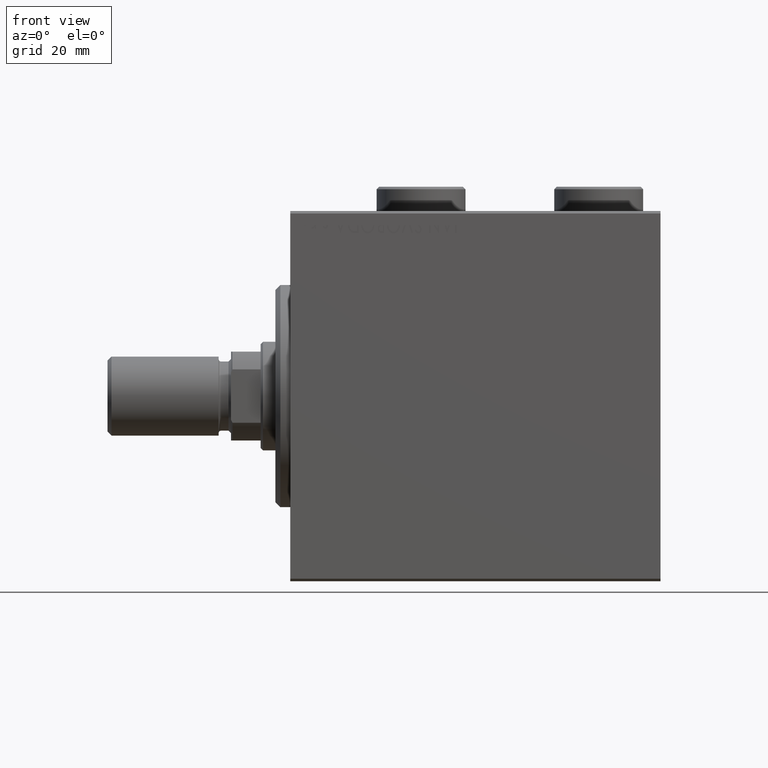
[diagram: clean part render]
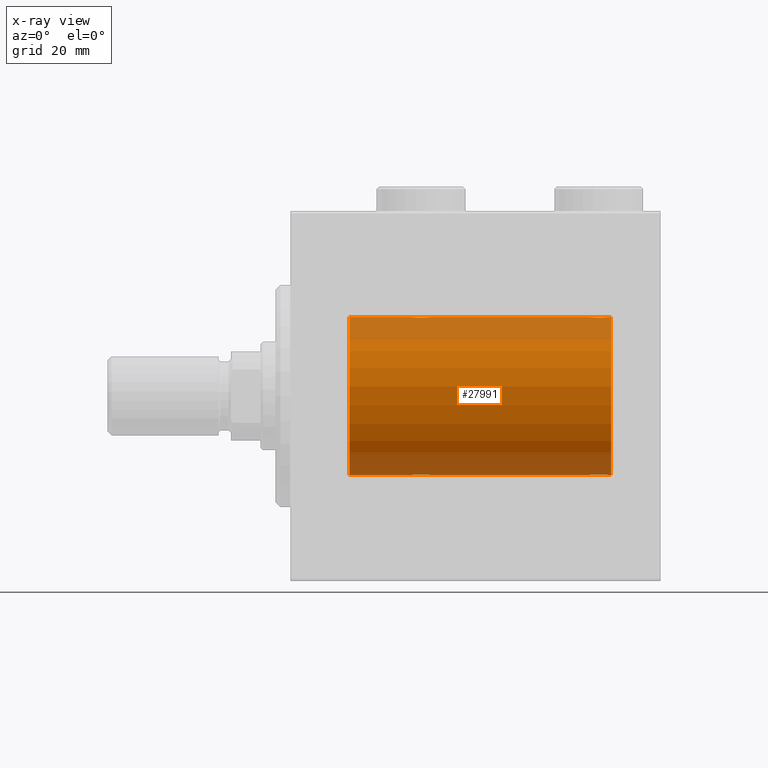
[diagram: x-ray — body ghosted, one internal face saturated and labeled with its STEP entity id]
A machine part, front view, then the same camera in x-ray: the body is ghosted and one INTERNAL B-rep face — a face not visible from any outside direction — is saturated and labeled: STEP entity #27991.
In plain terms, the highlighted cylindrical surface (partial cylindrical patch) has radius 16 mm, axis along (-1, -0, -0).
Its self-contained STEP definition (entity closure, byte-faithful):
#27 = CARTESIAN_POINT ( 'NONE',  ( 60.49999999999999289, -9.573340169032840992E-15, -16.00000000000000000 ) ) ;
#34 = CARTESIAN_POINT ( 'NONE',  ( 28.49999999999999289, -0.2645044045393371013, 16.00000000000000000 ) ) ;
#90 = CARTESIAN_POINT ( 'NONE',  ( 24.55325995304361086, -0.5272875822566830406, -15.99312147175148091 ) ) ;
#263 = CARTESIAN_POINT ( 'NONE',  ( 64.50000000000000000, -0.2611263091397180713, -16.00000000000000355 ) ) ;
#459 = CARTESIAN_POINT ( 'NONE',  ( 28.49999999999999645, 1.959434851238818770E-15, -16.00000000000000000 ) ) ;
#555 = CARTESIAN_POINT ( 'NONE',  ( 28.44751141031269626, -0.5244724041436300555, -15.99321727742820975 ) ) ;
#729 = CARTESIAN_POINT ( 'NONE',  ( 28.24678128854693426, -1.008257970366811751, 15.97001510549667103 ) ) ;
#1309 = AXIS2_PLACEMENT_3D ( 'NONE', #37104, #40366, #29671 ) ;
#1744 = VERTEX_POINT ( 'NONE', #23324 ) ;
#1869 = CARTESIAN_POINT ( 'NONE',  ( 65.00000000000000000, 1.959434878635765131E-15, -16.00000000000000000 ) ) ;
#2026 = CARTESIAN_POINT ( 'NONE',  ( 62.23629537121826871, -1.986819684797415331, 15.87618369521984896 ) ) ;
#2194 = CARTESIAN_POINT ( 'NONE',  ( 63.14636362870457020, -1.897207606501650989, -15.88720136683947182 ) ) ;
#2218 = DIRECTION ( 'NONE',  ( -1.000000000000000000, -0.000000000000000000, -0.000000000000000000 ) ) ;
#2251 = CARTESIAN_POINT ( 'NONE',  ( 61.17695155286794062, -1.505501573616968791, 15.92928245046055302 ) ) ;
#2482 = CARTESIAN_POINT ( 'NONE',  ( 61.98062885452072379, -1.935780515549986980, 15.88248768234623576 ) ) ;
#2659 = CARTESIAN_POINT ( 'NONE',  ( 60.75321871145306574, -1.008257970366820189, -15.97001510549667813 ) ) ;
#2735 = CARTESIAN_POINT ( 'NONE',  ( 64.50000000000000000, 1.959434851248285101E-15, -16.00000000000000000 ) ) ;
#2752 = EDGE_CURVE ( 'NONE', #5545, #11231, #35636, .T. ) ;
#3399 = VECTOR ( 'NONE', #26370, 1000.000000000000000 ) ;
#3520 = CARTESIAN_POINT ( 'NONE',  ( 63.01937114547926910, -1.935780515549996306, -15.88248768234623221 ) ) ;
#3754 = CARTESIAN_POINT ( 'NONE',  ( 60.90236864042802267, -1.231048876942808956, -15.95364199493483426 ) ) ;
#3851 = CARTESIAN_POINT ( 'NONE',  ( 65.00000000000000000, 0.000000000000000000, 16.00000000000000000 ) ) ;
#4282 = CARTESIAN_POINT ( 'NONE',  ( 25.61407850031505262, -1.797863738508699516, -15.89874935709250892 ) ) ;
#4485 = EDGE_CURVE ( 'NONE', #26222, #11111, #28794, .T. ) ;
#4520 = ORIENTED_EDGE ( 'NONE', *, *, #26149, .T. ) ;
#4683 = VECTOR ( 'NONE', #2218, 1000.000000000000000 ) ;
#4752 = ORIENTED_EDGE ( 'NONE', *, *, #13026, .F. ) ;
#5287 = CARTESIAN_POINT ( 'NONE',  ( 62.76082820349364511, -1.987201773464424504, 15.87613558886576115 ) ) ;
#5545 = VERTEX_POINT ( 'NONE', #2735 ) ;
#5689 = CARTESIAN_POINT ( 'NONE',  ( 63.82304844713207359, -1.505501573616973898, -15.92928245046055302 ) ) ;
#5959 = CARTESIAN_POINT ( 'NONE',  ( 60.75183372993787145, -1.005876079953899493, 15.97016854943969832 ) ) ;
#6137 = CARTESIAN_POINT ( 'NONE',  ( 62.36919591423421849, -2.000094120337583714, -15.87449600834270669 ) ) ;
#6446 = CYLINDRICAL_SURFACE ( 'NONE', #38851, 16.00000000000000000 ) ;
#6503 = CIRCLE ( 'NONE', #1309, 16.00000000000000000 ) ;
#7010 = CARTESIAN_POINT ( 'NONE',  ( 28.09763135957198799, -1.231048876942802961, 15.95364199493483781 ) ) ;
#7067 = CARTESIAN_POINT ( 'NONE',  ( 26.36919591423421494, -2.000094120337574388, -15.87449600834270669 ) ) ;
#7448 = CARTESIAN_POINT ( 'NONE',  ( 65.00000000000000000, 0.000000000000000000, 0.000000000000000000 ) ) ;
#7997 = CARTESIAN_POINT ( 'NONE',  ( 24.50000000000000000, -2.739635037742051899E-23, 16.00000000000000000 ) ) ;
#8671 = LINE ( 'NONE', #44274, #3399 ) ;
#9457 = CARTESIAN_POINT ( 'NONE',  ( 63.14376670717340545, -1.898087287925291466, 15.88709570026284190 ) ) ;
#9623 = CARTESIAN_POINT ( 'NONE',  ( 62.76370462878178103, -1.986819684797425767, -15.87618369521983475 ) ) ;
#10315 = CARTESIAN_POINT ( 'NONE',  ( 24.50000000000001066, -0.2645044045393414867, -16.00000000000000711 ) ) ;
#10489 = CARTESIAN_POINT ( 'NONE',  ( 27.38592149968496514, -1.797863738508701736, 15.89874935709250892 ) ) ;
#10618 = CARTESIAN_POINT ( 'NONE',  ( 60.49999999999999289, -9.573340169032840992E-15, -16.00000000000000000 ) ) ;
#11003 = CARTESIAN_POINT ( 'NONE',  ( 27.50320784791318118, -1.735114343256362712, -15.90580722143558212 ) ) ;
#11111 = VERTEX_POINT ( 'NONE', #20634 ) ;
#11178 = CARTESIAN_POINT ( 'NONE',  ( 24.50000000000000000, -2.739635037742051899E-23, 16.00000000000000000 ) ) ;
#11231 = VERTEX_POINT ( 'NONE', #10618 ) ;
#11237 = CARTESIAN_POINT ( 'NONE',  ( 28.50000000000000000, -0.2611263091397177383, -16.00000000000000000 ) ) ;
#11417 = CARTESIAN_POINT ( 'NONE',  ( 24.50000000000000355, -0.2611263091397209579, 16.00000000000000000 ) ) ;
#11849 = VERTEX_POINT ( 'NONE', #459 ) ;
#12878 = CARTESIAN_POINT ( 'NONE',  ( 61.17895665196596156, -1.507256214862792820, -15.92911555180481820 ) ) ;
#13026 = EDGE_CURVE ( 'NONE', #27104, #28616, #44029, .T. ) ;
#13153 = CARTESIAN_POINT ( 'NONE',  ( 60.90061418674617499, -1.228793614424115166, 15.95381972293796835 ) ) ;
#13365 = DIRECTION ( 'NONE',  ( -1.000000000000000000, -0.000000000000000000, -0.000000000000000000 ) ) ;
#13800 = CARTESIAN_POINT ( 'NONE',  ( 25.17895665196595445, -1.507256214862784383, -15.92911555180481820 ) ) ;
#13952 = ORIENTED_EDGE ( 'NONE', *, *, #42309, .F. ) ;
#13966 = CARTESIAN_POINT ( 'NONE',  ( 61.49921634246595659, -1.736521253711153845, -15.90565326803670665 ) ) ;
#13974 = CARTESIAN_POINT ( 'NONE',  ( 25.27971966521589664, -1.589957129871035768, 15.92097237843274549 ) ) ;
#14005 = LINE ( 'NONE', #14242, #45805 ) ;
#14242 = CARTESIAN_POINT ( 'NONE',  ( 65.00000000000000000, 0.000000000000000000, 16.00000000000000000 ) ) ;
#14433 = CARTESIAN_POINT ( 'NONE',  ( 64.44751141031268560, -0.5244724041436317208, -15.99321727742820620 ) ) ;
#14442 = CARTESIAN_POINT ( 'NONE',  ( 24.55248858968731085, -0.5244724041436337192, 15.99321727742820975 ) ) ;
#14502 = CARTESIAN_POINT ( 'NONE',  ( 26.76370462878175971, -1.986819684797417995, -15.87618369521984185 ) ) ;
#14726 = CARTESIAN_POINT ( 'NONE',  ( 25.85623329282659455, -1.898087287925299016, -15.88709570026284545 ) ) ;
#14899 = CARTESIAN_POINT ( 'NONE',  ( 27.71821872840285295, -1.591545514129674821, 15.92081325887754595 ) ) ;
#14985 = ORIENTED_EDGE ( 'NONE', *, *, #44882, .T. ) ;
#15981 = CARTESIAN_POINT ( 'NONE',  ( 64.50000000000002842, -0.2645044045393374899, 16.00000000000000711 ) ) ;
#16369 = CARTESIAN_POINT ( 'NONE',  ( 63.50320784791315987, -1.735114343256370040, -15.90580722143557502 ) ) ;
#16422 = CARTESIAN_POINT ( 'NONE',  ( 61.61153859170720182, -1.796613193944150311, 15.89889131367403685 ) ) ;
#16493 = LINE ( 'NONE', #1869, #36543 ) ;
#16702 = VERTEX_POINT ( 'NONE', #42079 ) ;
#16754 = LINE ( 'NONE', #30979, #44232 ) ;
#16827 = CARTESIAN_POINT ( 'NONE',  ( 63.72028033478409270, -1.589957129871035546, -15.92097237843274549 ) ) ;
#17033 = EDGE_CURVE ( 'NONE', #28616, #44033, #35744, .T. ) ;
#17457 = DIRECTION ( 'NONE',  ( 0.000000000000000000, 0.000000000000000000, 1.000000000000000000 ) ) ;
#17699 = CARTESIAN_POINT ( 'NONE',  ( 64.50000000000000000, 1.959434851248285101E-15, -16.00000000000000000 ) ) ;
#17759 = CARTESIAN_POINT ( 'NONE',  ( 25.49921634246596369, -1.736521253711144741, -15.90565326803670665 ) ) ;
#17802 = EDGE_LOOP ( 'NONE', ( #4752, #41757, #25242, #28361, #4520, #32345, #14985, #26813, #39756, #13952, #43841, #37086 ) ) ;
#17942 = CARTESIAN_POINT ( 'NONE',  ( 25.49679215208682592, -1.735114343256370262, 15.90580722143557502 ) ) ;
#17993 = EDGE_CURVE ( 'NONE', #16702, #44033, #25221, .T. ) ;
#18173 = CARTESIAN_POINT ( 'NONE',  ( 26.76082820349364866, -1.987201773464435828, 15.87613558886576470 ) ) ;
#18232 = CARTESIAN_POINT ( 'NONE',  ( 25.98335998918948775, -1.936513707523809469, -15.88239801746204805 ) ) ;
#18401 = CARTESIAN_POINT ( 'NONE',  ( 25.61153859170720537, -1.796613193944160969, 15.89889131367403685 ) ) ;
#19471 = CARTESIAN_POINT ( 'NONE',  ( 63.71821872840284584, -1.591545514129670380, 15.92081325887754950 ) ) ;
#19891 = CARTESIAN_POINT ( 'NONE',  ( 65.00000000000000000, 1.959434878635765131E-15, -16.00000000000000000 ) ) ;
#20099 = CARTESIAN_POINT ( 'NONE',  ( 62.63366663175617788, -1.999904855391111846, -15.87451985347842331 ) ) ;
#20634 = CARTESIAN_POINT ( 'NONE',  ( 28.49999999999999645, -1.207828523974853969E-15, 16.00000000000000000 ) ) ;
#20974 = CARTESIAN_POINT ( 'NONE',  ( 26.23629537121825095, -1.986819684797424435, 15.87618369521983475 ) ) ;
#21200 = CARTESIAN_POINT ( 'NONE',  ( 63.38846140829282660, -1.796613193944156084, -15.89889131367402975 ) ) ;
#21207 = CARTESIAN_POINT ( 'NONE',  ( 28.44674004695639624, -0.5272875822566815973, 15.99312147175146670 ) ) ;
#21262 = CARTESIAN_POINT ( 'NONE',  ( 28.49999999999999645, 1.959434851238818770E-15, -16.00000000000000000 ) ) ;
#21429 = CARTESIAN_POINT ( 'NONE',  ( 64.09938581325380369, -1.228793614424120051, -15.95381972293796480 ) ) ;
#21574 = CARTESIAN_POINT ( 'NONE',  ( 65.00000000000000000, 0.000000000000000000, 0.000000000000000000 ) ) ;
#21620 = B_SPLINE_CURVE_WITH_KNOTS ( 'NONE', 3,
 ( #21262, #11237, #555, #21974, #28722, #24768, #35478, #11003, #38958, #36173, #39181, #14502, #25228, #7067, #21739, #18232, #14726, #4282, #17759, #45697, #13800, #28026, #42212, #90, #10315, #24528 ),
 .UNSPECIFIED., .F., .F.,
 ( 4, 2, 2, 2, 2, 2, 2, 2, 2, 2, 2, 2, 4 ),
 ( 0.006259031236593879007, 0.007041222816026946295, 0.007823414395460014450, 0.008214510185176547227, 0.008605605974893081739, 0.008996701764609614516, 0.009387797554326147292, 0.009778893344042681804, 0.01016998913375921632, 0.01056108492347574909, 0.01095218071319228187, 0.01173437229262534742, 0.01251656387205841471 ),
 .UNSPECIFIED. ) ;
#21739 = CARTESIAN_POINT ( 'NONE',  ( 26.23917179650635845, -1.987201773464429833, -15.87613558886576115 ) ) ;
#21974 = CARTESIAN_POINT ( 'NONE',  ( 28.24816627006210368, -1.005876079953898605, -15.97016854943969832 ) ) ;
#22759 = CARTESIAN_POINT ( 'NONE',  ( 64.49999999999998579, 3.415560487804343463E-15, 16.00000000000000000 ) ) ;
#22978 = CARTESIAN_POINT ( 'NONE',  ( 61.85363637129541559, -1.897207606501642774, 15.88720136683947537 ) ) ;
#23214 = CARTESIAN_POINT ( 'NONE',  ( 61.49679215208682592, -1.735114343256364711, 15.90580722143557502 ) ) ;
#23324 = CARTESIAN_POINT ( 'NONE',  ( 11.99999999999999645, 0.000000000000000000, 16.00000000000000000 ) ) ;
#23359 = CARTESIAN_POINT ( 'NONE',  ( 65.00000000000000000, 0.000000000000000000, 16.00000000000000000 ) ) ;
#23440 = CARTESIAN_POINT ( 'NONE',  ( 64.44674004695637848, -0.5272875822566772674, 15.99312147175147381 ) ) ;
#23607 = CARTESIAN_POINT ( 'NONE',  ( 60.55325995304358599, -0.5272875822566914783, -15.99312147175147025 ) ) ;
#23658 = CARTESIAN_POINT ( 'NONE',  ( 63.38592149968495448, -1.797863738508690190, 15.89874935709250181 ) ) ;
#24180 = EDGE_CURVE ( 'NONE', #35916, #43494, #16493, .T. ) ;
#24373 = DIRECTION ( 'NONE',  ( -1.000000000000000000, -0.000000000000000000, -0.000000000000000000 ) ) ;
#24528 = CARTESIAN_POINT ( 'NONE',  ( 24.50000000000000000, -2.745261152005884500E-15, -16.00000000000000000 ) ) ;
#24709 = CARTESIAN_POINT ( 'NONE',  ( 24.90061418674620342, -1.228793614424124714, 15.95381972293797368 ) ) ;
#24768 = CARTESIAN_POINT ( 'NONE',  ( 27.82304844713206293, -1.505501573616970568, -15.92928245046054769 ) ) ;
#24936 = CARTESIAN_POINT ( 'NONE',  ( 61.98335998918948775, -1.936513707523816574, -15.88239801746205515 ) ) ;
#24946 = CARTESIAN_POINT ( 'NONE',  ( 27.82104334803405266, -1.507256214862787713, 15.92911555180482530 ) ) ;
#25221 = B_SPLINE_CURVE_WITH_KNOTS ( 'NONE', 3,
 ( #40665, #40887, #34377, #5959, #13153, #2251, #33703, #23214, #16422, #22978, #2482, #2026, #30651, #30417, #5287, #44832, #9457, #23658, #44604, #19471, #27376, #41569, #33922, #23440, #15981, #22759 ),
 .UNSPECIFIED., .F., .F.,
 ( 4, 2, 2, 2, 2, 2, 2, 2, 2, 2, 2, 2, 4 ),
 ( 0.006259031236593833904, 0.007041222816026886447, 0.007823414395459939857, 0.008214510185176465695, 0.008605605974892991533, 0.008996701764609517371, 0.009387797554326043209, 0.009778893344042589864, 0.01016998913375913652, 0.01056108492347568317, 0.01095218071319222809, 0.01173437229262529191, 0.01251656387205835400 ),
 .UNSPECIFIED. ) ;
#25228 = CARTESIAN_POINT ( 'NONE',  ( 26.63366663175618854, -1.999904855391105851, -15.87451985347842687 ) ) ;
#25242 = ORIENTED_EDGE ( 'NONE', *, *, #2752, .T. ) ;
#26058 = VECTOR ( 'NONE', #13365, 1000.000000000000000 ) ;
#26149 = EDGE_CURVE ( 'NONE', #11849, #35916, #21620, .T. ) ;
#26222 = VERTEX_POINT ( 'NONE', #7997 ) ;
#26370 = DIRECTION ( 'NONE',  ( -1.000000000000000000, -0.000000000000000000, -0.000000000000000000 ) ) ;
#26813 = ORIENTED_EDGE ( 'NONE', *, *, #36557, .F. ) ;
#27104 = VERTEX_POINT ( 'NONE', #35089 ) ;
#27325 = CARTESIAN_POINT ( 'NONE',  ( 61.61407850031504552, -1.797863738508707510, -15.89874935709250892 ) ) ;
#27376 = CARTESIAN_POINT ( 'NONE',  ( 63.82104334803405266, -1.507256214862773058, 15.92911555180482175 ) ) ;
#27991 = ADVANCED_FACE ( 'NONE', ( #31825 ), #6446, .F. ) ;
#28026 = CARTESIAN_POINT ( 'NONE',  ( 24.90236864042801557, -1.231048876942801407, -15.95364199493483426 ) ) ;
#28189 = CARTESIAN_POINT ( 'NONE',  ( 61.28178127159713284, -1.591545514129680150, -15.92081325887754417 ) ) ;
#28197 = CARTESIAN_POINT ( 'NONE',  ( 26.63080408576578861, -2.000094120337581050, 15.87449600834271735 ) ) ;
#28271 = EDGE_CURVE ( 'NONE', #11231, #11849, #41091, .T. ) ;
#28361 = ORIENTED_EDGE ( 'NONE', *, *, #28271, .T. ) ;
#28427 = CARTESIAN_POINT ( 'NONE',  ( 64.24816627006210012, -1.005876079953901048, -15.97016854943970188 ) ) ;
#28464 = DIRECTION ( 'NONE',  ( -1.000000000000000000, -0.000000000000000000, -0.000000000000000000 ) ) ;
#28616 = VERTEX_POINT ( 'NONE', #23359 ) ;
#28660 = CARTESIAN_POINT ( 'NONE',  ( 60.49999999999999289, -0.2645044045393447618, -16.00000000000000355 ) ) ;
#28722 = CARTESIAN_POINT ( 'NONE',  ( 28.09938581325380369, -1.228793614424118497, -15.95381972293797013 ) ) ;
#28794 = B_SPLINE_CURVE_WITH_KNOTS ( 'NONE', 3,
 ( #11178, #11417, #14442, #42387, #24709, #35890, #13974, #17942, #18401, #39354, #32621, #20974, #39590, #28197, #18173, #35199, #42851, #10489, #38666, #14899, #24946, #7010, #729, #21207, #34, #35427 ),
 .UNSPECIFIED., .F., .F.,
 ( 4, 2, 2, 2, 2, 2, 2, 2, 2, 2, 2, 2, 4 ),
 ( 0.006259031236593858190, 0.007041222816026928080, 0.007823414395459998838, 0.008214510185176533349, 0.008605605974893067861, 0.008996701764609604107, 0.009387797554326138619, 0.009778893344042673130, 0.01016998913375920938, 0.01056108492347574389, 0.01095218071319227840, 0.01173437229262534048, 0.01251656387205840430 ),
 .UNSPECIFIED. ) ;
#29671 = DIRECTION ( 'NONE',  ( 0.000000000000000000, 0.000000000000000000, 1.000000000000000000 ) ) ;
#30417 = CARTESIAN_POINT ( 'NONE',  ( 62.63080408576578151, -2.000094120337570835, 15.87449600834271024 ) ) ;
#30651 = CARTESIAN_POINT ( 'NONE',  ( 62.36633336824382212, -1.999904855391102743, 15.87451985347842687 ) ) ;
#30979 = CARTESIAN_POINT ( 'NONE',  ( 65.00000000000000000, 1.959434878635765131E-15, -16.00000000000000000 ) ) ;
#31825 = FACE_OUTER_BOUND ( 'NONE', #17802, .T. ) ;
#32345 = ORIENTED_EDGE ( 'NONE', *, *, #24180, .T. ) ;
#32621 = CARTESIAN_POINT ( 'NONE',  ( 25.98062885452072734, -1.935780515549995862, 15.88248768234623221 ) ) ;
#32744 = CARTESIAN_POINT ( 'NONE',  ( 64.49999999999998579, 3.415560487804343463E-15, 16.00000000000000000 ) ) ;
#33295 = CARTESIAN_POINT ( 'NONE',  ( 24.50000000000000000, -2.745261152005884500E-15, -16.00000000000000000 ) ) ;
#33703 = CARTESIAN_POINT ( 'NONE',  ( 61.27971966521590730, -1.589957129871031549, 15.92097237843274549 ) ) ;
#33922 = CARTESIAN_POINT ( 'NONE',  ( 64.24678128854692716, -1.008257970366806422, 15.97001510549667458 ) ) ;
#34377 = CARTESIAN_POINT ( 'NONE',  ( 60.55248858968734282, -0.5244724041436312767, 15.99321727742821686 ) ) ;
#35089 = CARTESIAN_POINT ( 'NONE',  ( 65.00000000000000000, 1.959434878635765131E-15, -16.00000000000000000 ) ) ;
#35199 = CARTESIAN_POINT ( 'NONE',  ( 27.01664001081050515, -1.936513707523814354, 15.88239801746204805 ) ) ;
#35420 = CARTESIAN_POINT ( 'NONE',  ( 61.85623329282659455, -1.898087287925307232, -15.88709570026284545 ) ) ;
#35427 = CARTESIAN_POINT ( 'NONE',  ( 28.49999999999999645, -1.207828523974853969E-15, 16.00000000000000000 ) ) ;
#35478 = CARTESIAN_POINT ( 'NONE',  ( 27.72028033478411757, -1.589957129871027330, -15.92097237843274904 ) ) ;
#35553 = DIRECTION ( 'NONE',  ( 0.000000000000000000, 0.000000000000000000, 1.000000000000000000 ) ) ;
#35636 = B_SPLINE_CURVE_WITH_KNOTS ( 'NONE', 3,
 ( #17699, #263, #14433, #28427, #21429, #5689, #16827, #16369, #21200, #2194, #3520, #9623, #20099, #6137, #44783, #24936, #35420, #27325, #13966, #28189, #12878, #3754, #2659, #23607, #28660, #27 ),
 .UNSPECIFIED., .F., .F.,
 ( 4, 2, 2, 2, 2, 2, 2, 2, 2, 2, 2, 2, 4 ),
 ( 0.006259031236593884211, 0.007041222816026949764, 0.007823414395460014450, 0.008214510185176547227, 0.008605605974893080004, 0.008996701764609611046, 0.009387797554326143823, 0.009778893344042676600, 0.01016998913375920938, 0.01056108492347574042, 0.01095218071319227146, 0.01173437229262535089, 0.01251656387205843032 ),
 .UNSPECIFIED. ) ;
#35744 = LINE ( 'NONE', #3851, #26058 ) ;
#35890 = CARTESIAN_POINT ( 'NONE',  ( 25.17695155286792286, -1.505501573616977673, 15.92928245046054947 ) ) ;
#35916 = VERTEX_POINT ( 'NONE', #33295 ) ;
#36173 = CARTESIAN_POINT ( 'NONE',  ( 27.14636362870457731, -1.897207606501644550, -15.88720136683946826 ) ) ;
#36543 = VECTOR ( 'NONE', #44226, 1000.000000000000000 ) ;
#36557 = EDGE_CURVE ( 'NONE', #26222, #1744, #8671, .T. ) ;
#37086 = ORIENTED_EDGE ( 'NONE', *, *, #17033, .F. ) ;
#37104 = CARTESIAN_POINT ( 'NONE',  ( 11.99999999999999645, 0.000000000000000000, 0.000000000000000000 ) ) ;
#37423 = EDGE_CURVE ( 'NONE', #27104, #5545, #16754, .T. ) ;
#38666 = CARTESIAN_POINT ( 'NONE',  ( 27.50078365753405407, -1.736521253711149182, 15.90565326803671375 ) ) ;
#38851 = AXIS2_PLACEMENT_3D ( 'NONE', #21574, #24373, #35553 ) ;
#38958 = CARTESIAN_POINT ( 'NONE',  ( 27.38846140829281595, -1.796613193944150755, -15.89889131367402975 ) ) ;
#39181 = CARTESIAN_POINT ( 'NONE',  ( 27.01937114547927266, -1.935780515549990088, -15.88248768234623221 ) ) ;
#39326 = DIRECTION ( 'NONE',  ( -1.000000000000000000, 0.000000000000000000, 0.000000000000000000 ) ) ;
#39354 = CARTESIAN_POINT ( 'NONE',  ( 25.85363637129542624, -1.897207606501653432, 15.88720136683947182 ) ) ;
#39566 = AXIS2_PLACEMENT_3D ( 'NONE', #7448, #39326, #17457 ) ;
#39590 = CARTESIAN_POINT ( 'NONE',  ( 26.36633336824380436, -1.999904855391111402, 15.87451985347842687 ) ) ;
#39756 = ORIENTED_EDGE ( 'NONE', *, *, #4485, .T. ) ;
#40289 = CARTESIAN_POINT ( 'NONE',  ( 11.99999999999999645, 1.959434878635765131E-15, -16.00000000000000000 ) ) ;
#40366 = DIRECTION ( 'NONE',  ( -1.000000000000000000, 0.000000000000000000, 0.000000000000000000 ) ) ;
#40665 = CARTESIAN_POINT ( 'NONE',  ( 60.50000000000000711, -2.739595594696790848E-23, 16.00000000000000000 ) ) ;
#40887 = CARTESIAN_POINT ( 'NONE',  ( 60.50000000000000711, -0.2611263091397199587, 16.00000000000000000 ) ) ;
#41091 = LINE ( 'NONE', #19891, #4683 ) ;
#41569 = CARTESIAN_POINT ( 'NONE',  ( 64.09763135957199154, -1.231048876942787196, 15.95364199493483781 ) ) ;
#41757 = ORIENTED_EDGE ( 'NONE', *, *, #37423, .T. ) ;
#42079 = CARTESIAN_POINT ( 'NONE',  ( 60.50000000000000711, -2.739595594696790848E-23, 16.00000000000000000 ) ) ;
#42212 = CARTESIAN_POINT ( 'NONE',  ( 24.75321871145306574, -1.008257970366812195, -15.97001510549667458 ) ) ;
#42309 = EDGE_CURVE ( 'NONE', #16702, #11111, #14005, .T. ) ;
#42387 = CARTESIAN_POINT ( 'NONE',  ( 24.75183372993787856, -1.005876079953904600, 15.97016854943970543 ) ) ;
#42851 = CARTESIAN_POINT ( 'NONE',  ( 27.14376670717340545, -1.898087287925302125, 15.88709570026284545 ) ) ;
#43494 = VERTEX_POINT ( 'NONE', #40289 ) ;
#43841 = ORIENTED_EDGE ( 'NONE', *, *, #17993, .T. ) ;
#44029 = CIRCLE ( 'NONE', #39566, 16.00000000000000000 ) ;
#44033 = VERTEX_POINT ( 'NONE', #32744 ) ;
#44226 = DIRECTION ( 'NONE',  ( -1.000000000000000000, -0.000000000000000000, -0.000000000000000000 ) ) ;
#44232 = VECTOR ( 'NONE', #45155, 1000.000000000000000 ) ;
#44274 = CARTESIAN_POINT ( 'NONE',  ( 65.00000000000000000, 0.000000000000000000, 16.00000000000000000 ) ) ;
#44604 = CARTESIAN_POINT ( 'NONE',  ( 63.50078365753401499, -1.736521253711142521, 15.90565326803670665 ) ) ;
#44783 = CARTESIAN_POINT ( 'NONE',  ( 62.23917179650635489, -1.987201773464436716, -15.87613558886576826 ) ) ;
#44832 = CARTESIAN_POINT ( 'NONE',  ( 63.01664001081051936, -1.936513707523802585, 15.88239801746204805 ) ) ;
#44882 = EDGE_CURVE ( 'NONE', #43494, #1744, #6503, .T. ) ;
#45155 = DIRECTION ( 'NONE',  ( -1.000000000000000000, -0.000000000000000000, -0.000000000000000000 ) ) ;
#45697 = CARTESIAN_POINT ( 'NONE',  ( 25.28178127159715416, -1.591545514129671046, -15.92081325887754950 ) ) ;
#45805 = VECTOR ( 'NONE', #28464, 1000.000000000000000 ) ;